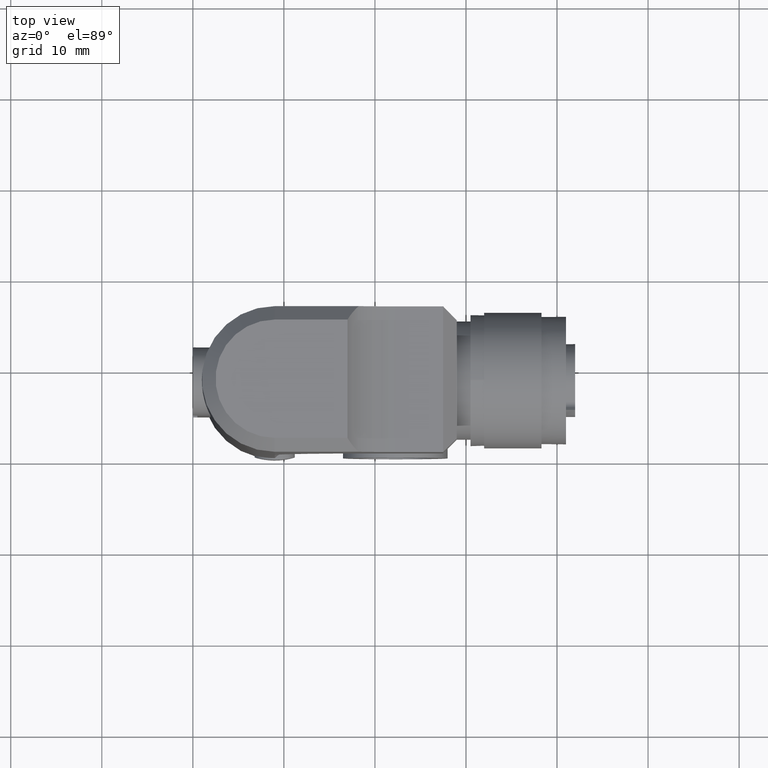
[diagram: clean part render]
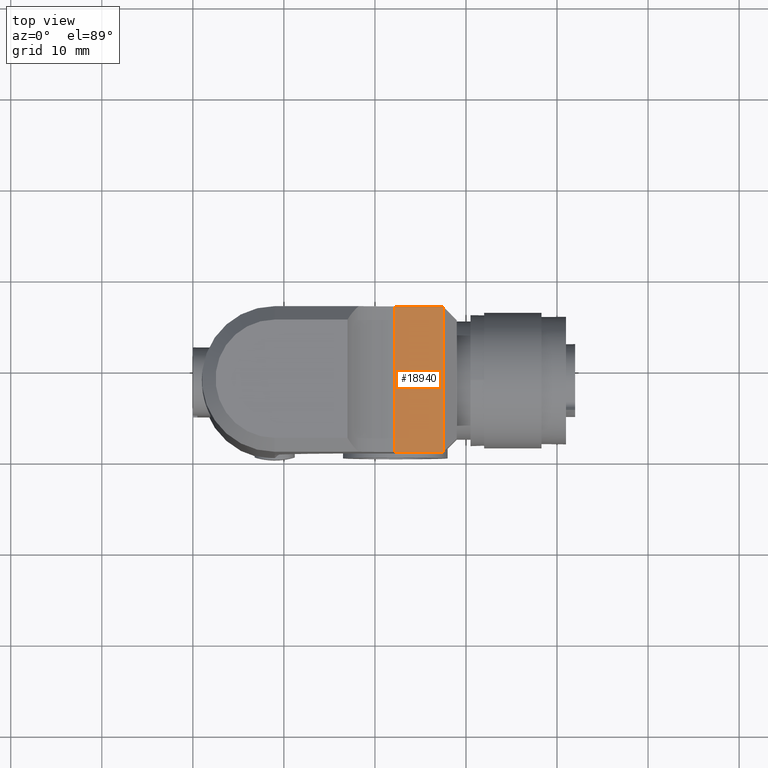
[diagram: same view with one face highlighted and labeled with its STEP entity id]
A machine part, top view. The second image highlights one B-rep face of the part: STEP entity #18940.
In plain terms, the highlighted planar face has unit normal (-0, 0, -1).
Its self-contained STEP definition (entity closure, byte-faithful):
#9870=CARTESIAN_POINT('',(8.,18.5,47.));
#9880=VERTEX_POINT('',#9870);
#10950=CARTESIAN_POINT('',(-7.99999999999999,18.5,47.));
#10960=VERTEX_POINT('',#10950);
#11060=CARTESIAN_POINT('',(0.,18.5,47.));
#11070=DIRECTION('',(-1.,0.,0.));
#11080=VECTOR('',#11070,1.);
#11090=LINE('',#11060,#11080);
#11100=EDGE_CURVE('',#9880,#10960,#11090,.T.);
#18640=CARTESIAN_POINT('',(8.,13.1961524227066,47.));
#18650=DIRECTION('',(-0.,-0.,-1.));
#18660=DIRECTION('',(0.,-1.,0.));
#18670=AXIS2_PLACEMENT_3D('',#18640,#18650,#18660);
#18680=PLANE('',#18670);
#18690=CARTESIAN_POINT('',(8.,13.1961524227066,47.));
#18700=DIRECTION('',(-1.,0.,0.));
#18710=VECTOR('',#18700,1.);
#18720=LINE('',#18690,#18710);
#18730=CARTESIAN_POINT('',(8.,13.1961524227066,47.));
#18740=VERTEX_POINT('',#18730);
#18750=CARTESIAN_POINT('',(-7.99999999999999,13.1961524227066,47.));
#18760=VERTEX_POINT('',#18750);
#18770=EDGE_CURVE('',#18740,#18760,#18720,.T.);
#18780=ORIENTED_EDGE('',*,*,#18770,.F.);
#18790=CARTESIAN_POINT('',(-8.,0.,47.));
#18800=DIRECTION('',(0.,-1.,0.));
#18810=VECTOR('',#18800,1.);
#18820=LINE('',#18790,#18810);
#18830=EDGE_CURVE('',#10960,#18760,#18820,.T.);
#18840=ORIENTED_EDGE('',*,*,#18830,.T.);
#18850=ORIENTED_EDGE('',*,*,#11100,.T.);
#18860=CARTESIAN_POINT('',(8.,0.,47.));
#18870=DIRECTION('',(0.,-1.,0.));
#18880=VECTOR('',#18870,1.);
#18890=LINE('',#18860,#18880);
#18900=EDGE_CURVE('',#9880,#18740,#18890,.T.);
#18910=ORIENTED_EDGE('',*,*,#18900,.F.);
#18920=EDGE_LOOP('',(#18910,#18850,#18840,#18780));
#18930=FACE_OUTER_BOUND('',#18920,.T.);
#18940=ADVANCED_FACE('',(#18930),#18680,.F.);